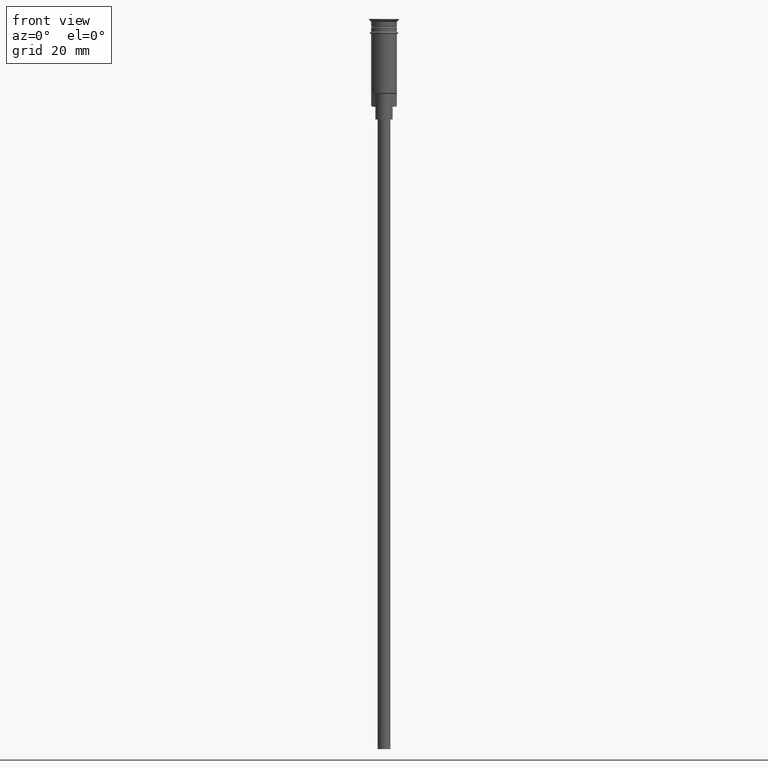
[diagram: clean part render]
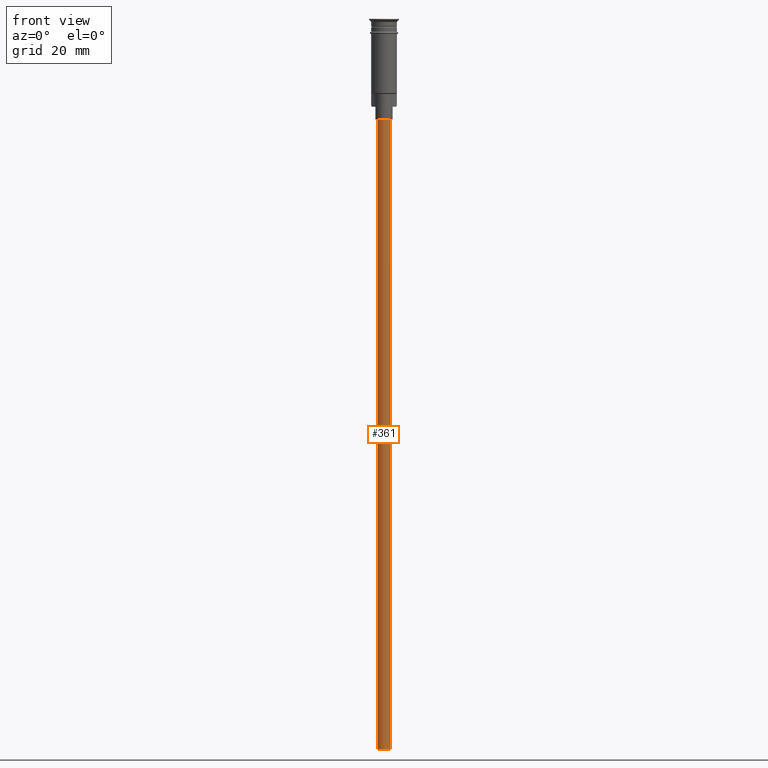
[diagram: same view with one face highlighted and labeled with its STEP entity id]
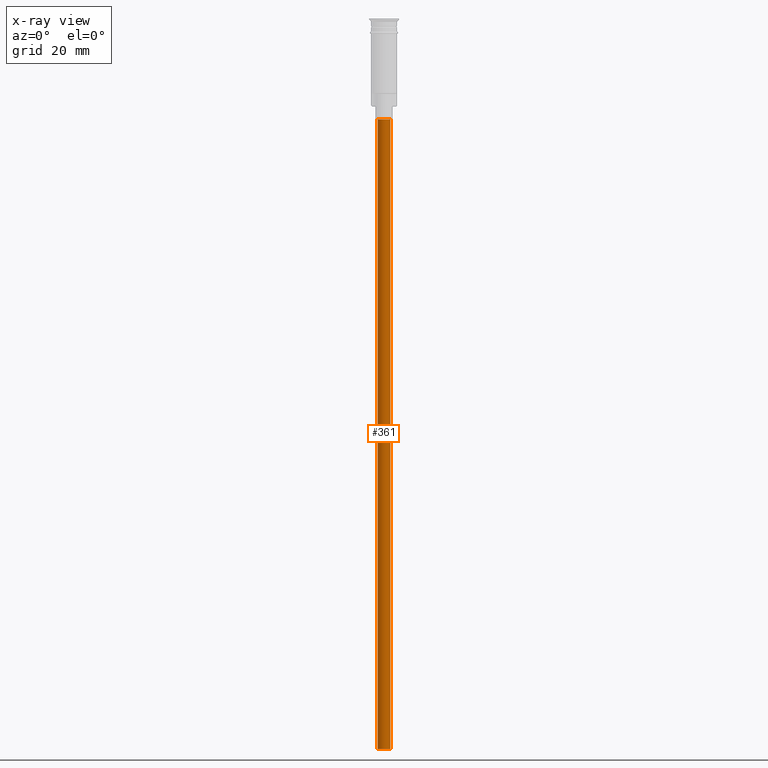
[diagram: x-ray of the same camera — body ghosted, the highlighted face saturated]
A machine part, front view. The second image highlights one B-rep face of the part: STEP entity #361.
The next image is the same camera in x-ray: the body ghosted, the highlighted face saturated — about 0% of this face is hidden behind the body in this view.
In plain terms, the highlighted cylindrical surface (edge-blend (fillet) strip) has radius 1.5 mm, axis along (-0, -0, 1).
Its self-contained STEP definition (entity closure, byte-faithful):
#21 = DIRECTION ( 'NONE',  ( -0.000000000000000000, -0.000000000000000000, 1.000000000000000000 ) ) ;
#58 = DIRECTION ( 'NONE',  ( -1.000000000000000000, 0.000000000000000000, 0.000000000000000000 ) ) ;
#71 = VERTEX_POINT ( 'NONE', #738 ) ;
#81 = LINE ( 'NONE', #328, #475 ) ;
#204 = ORIENTED_EDGE ( 'NONE', *, *, #1252, .F. ) ;
#205 = VERTEX_POINT ( 'NONE', #293 ) ;
#213 = CIRCLE ( 'NONE', #865, 1.500000000000000222 ) ;
#269 = CARTESIAN_POINT ( 'NONE',  ( 1.500000000000000222, 0.000000000000000000, -170.4999999999999716 ) ) ;
#293 = CARTESIAN_POINT ( 'NONE',  ( 1.500000000000000222, 0.000000000000000000, -23.50000000000000000 ) ) ;
#313 = VECTOR ( 'NONE', #511, 1000.000000000000000 ) ;
#328 = CARTESIAN_POINT ( 'NONE',  ( -1.500000000000000222, 1.836970198721030181E-16, -170.4999999999999716 ) ) ;
#355 = EDGE_CURVE ( 'NONE', #71, #205, #631, .T. ) ;
#361 = ADVANCED_FACE ( 'NONE', ( #1009 ), #1130, .T. ) ;
#437 = DIRECTION ( 'NONE',  ( -1.000000000000000000, 0.000000000000000000, 0.000000000000000000 ) ) ;
#475 = VECTOR ( 'NONE', #1292, 1000.000000000000000 ) ;
#511 = DIRECTION ( 'NONE',  ( -0.000000000000000000, -0.000000000000000000, 1.000000000000000000 ) ) ;
#631 = LINE ( 'NONE', #269, #313 ) ;
#653 = VERTEX_POINT ( 'NONE', #1065 ) ;
#658 = VERTEX_POINT ( 'NONE', #823 ) ;
#695 = ORIENTED_EDGE ( 'NONE', *, *, #715, .T. ) ;
#715 = EDGE_CURVE ( 'NONE', #205, #653, #213, .T. ) ;
#738 = CARTESIAN_POINT ( 'NONE',  ( 1.500000000000000222, 0.000000000000000000, -170.4999999999999716 ) ) ;
#783 = AXIS2_PLACEMENT_3D ( 'NONE', #1559, #832, #58 ) ;
#822 = EDGE_LOOP ( 'NONE', ( #1297, #204, #1517, #695 ) ) ;
#823 = CARTESIAN_POINT ( 'NONE',  ( -1.500000000000000222, 1.836970198721030181E-16, -170.4999999999999716 ) ) ;
#832 = DIRECTION ( 'NONE',  ( 0.000000000000000000, 0.000000000000000000, -1.000000000000000000 ) ) ;
#865 = AXIS2_PLACEMENT_3D ( 'NONE', #965, #1182, #437 ) ;
#887 = CARTESIAN_POINT ( 'NONE',  ( 0.000000000000000000, 0.000000000000000000, -170.4999999999999716 ) ) ;
#965 = CARTESIAN_POINT ( 'NONE',  ( 0.000000000000000000, 0.000000000000000000, -23.50000000000000000 ) ) ;
#968 = AXIS2_PLACEMENT_3D ( 'NONE', #887, #21, #1505 ) ;
#1009 = FACE_OUTER_BOUND ( 'NONE', #822, .T. ) ;
#1065 = CARTESIAN_POINT ( 'NONE',  ( -1.500000000000000222, 1.836970198721030181E-16, -23.50000000000000000 ) ) ;
#1076 = CIRCLE ( 'NONE', #783, 1.500000000000000222 ) ;
#1130 = CYLINDRICAL_SURFACE ( 'NONE', #968, 1.500000000000000222 ) ;
#1182 = DIRECTION ( 'NONE',  ( 0.000000000000000000, 0.000000000000000000, -1.000000000000000000 ) ) ;
#1184 = EDGE_CURVE ( 'NONE', #658, #653, #81, .T. ) ;
#1252 = EDGE_CURVE ( 'NONE', #71, #658, #1076, .T. ) ;
#1292 = DIRECTION ( 'NONE',  ( -0.000000000000000000, -0.000000000000000000, 1.000000000000000000 ) ) ;
#1297 = ORIENTED_EDGE ( 'NONE', *, *, #1184, .F. ) ;
#1505 = DIRECTION ( 'NONE',  ( 1.000000000000000000, 0.000000000000000000, 0.000000000000000000 ) ) ;
#1517 = ORIENTED_EDGE ( 'NONE', *, *, #355, .T. ) ;
#1559 = CARTESIAN_POINT ( 'NONE',  ( 0.000000000000000000, 0.000000000000000000, -170.4999999999999716 ) ) ;